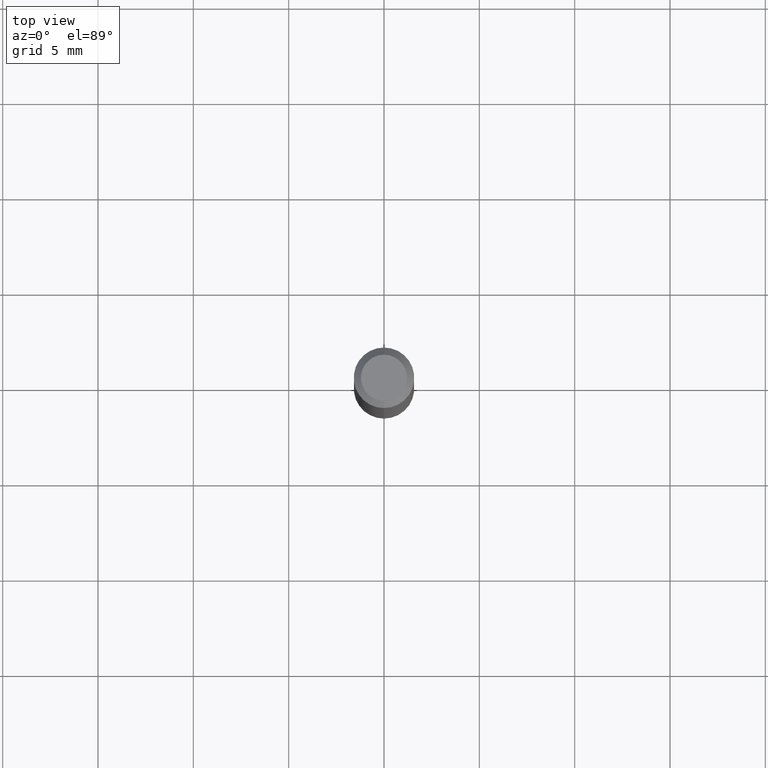
[diagram: clean part render]
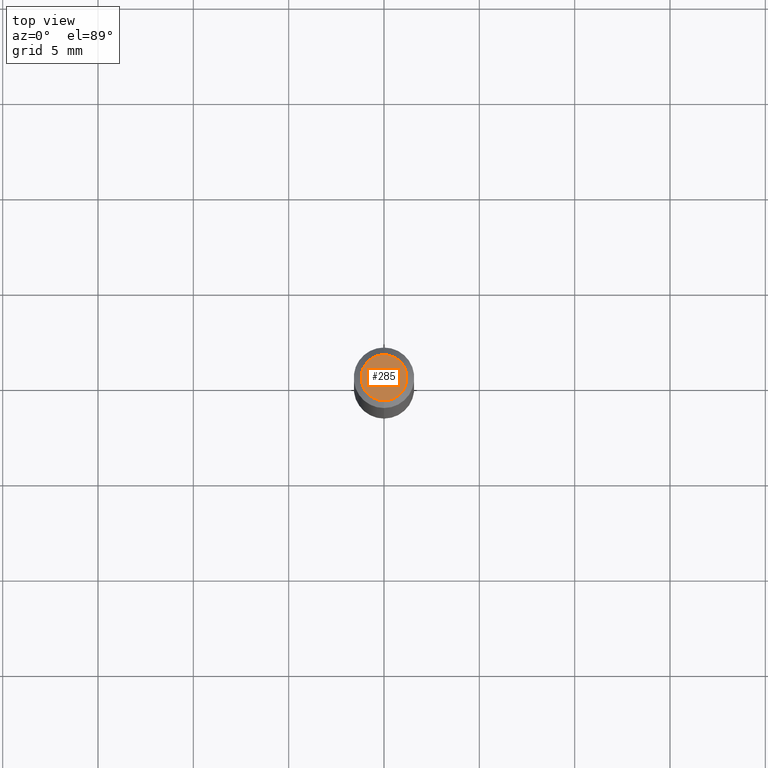
[diagram: same view with one face highlighted and labeled with its STEP entity id]
A machine part, top view. The second image highlights one B-rep face of the part: STEP entity #285.
In plain terms, the highlighted planar face has unit normal (0, -0, -1).
Its self-contained STEP definition (entity closure, byte-faithful):
#9 = CARTESIAN_POINT ( 'NONE',  ( 3.840629472727447874E-16, 0.04749999999999999362, -1.747056831868805136E-16 ) ) ;
#28 = CARTESIAN_POINT ( 'NONE',  ( 2.167013403574659442E-46, -3.093884679772774644E-32, -8.861289745126043681E-18 ) ) ;
#33 = CIRCLE ( 'NONE', #487, 0.04749999999999999362 ) ;
#58 = DIRECTION ( 'NONE',  ( -6.982962677686266711E-15, -1.000000000000000000, 3.491460914563251865E-15 ) ) ;
#63 = EDGE_CURVE ( 'NONE', #481, #312, #447, .T. ) ;
#68 = DIRECTION ( 'NONE',  ( 6.982962677686265922E-15, 1.000000000000000000, -3.491460914563251865E-15 ) ) ;
#88 = CARTESIAN_POINT ( 'NONE',  ( -3.773273898774340269E-16, -0.04749999999999999362, 1.569831036966284047E-16 ) ) ;
#122 = ORIENTED_EDGE ( 'NONE', *, *, #286, .T. ) ;
#150 = CARTESIAN_POINT ( 'NONE',  ( 3.316907271900976096E-16, 0.04749999999999999362, -1.702750383143174802E-16 ) ) ;
#182 = AXIS2_PLACEMENT_3D ( 'NONE', #409, #367, #58 ) ;
#219 = ORIENTED_EDGE ( 'NONE', *, *, #63, .T. ) ;
#225 = EDGE_LOOP ( 'NONE', ( #219, #122 ) ) ;
#242 = AXIS2_PLACEMENT_3D ( 'NONE', #150, #345, #68 ) ;
#269 = PLANE ( 'NONE',  #242 ) ;
#285 = ADVANCED_FACE ( 'NONE', ( #305 ), #269, .F. ) ;
#286 = EDGE_CURVE ( 'NONE', #312, #481, #33, .T. ) ;
#301 = DIRECTION ( 'NONE',  ( -6.982962677686266711E-15, -1.000000000000000000, 3.491460914563251865E-15 ) ) ;
#305 = FACE_OUTER_BOUND ( 'NONE', #225, .T. ) ;
#312 = VERTEX_POINT ( 'NONE', #88 ) ;
#345 = DIRECTION ( 'NONE',  ( 2.445483068383557816E-29, -3.491460914563251865E-15, -1.000000000000000000 ) ) ;
#367 = DIRECTION ( 'NONE',  ( -2.445483068383558096E-29, 3.491460914563251865E-15, 1.000000000000000000 ) ) ;
#409 = CARTESIAN_POINT ( 'NONE',  ( 2.167013403574659442E-46, -3.093884679772774644E-32, -8.861289745126043681E-18 ) ) ;
#447 = CIRCLE ( 'NONE', #182, 0.04749999999999999362 ) ;
#481 = VERTEX_POINT ( 'NONE', #9 ) ;
#487 = AXIS2_PLACEMENT_3D ( 'NONE', #28, #506, #301 ) ;
#506 = DIRECTION ( 'NONE',  ( -2.445483068383558096E-29, 3.491460914563251865E-15, 1.000000000000000000 ) ) ;